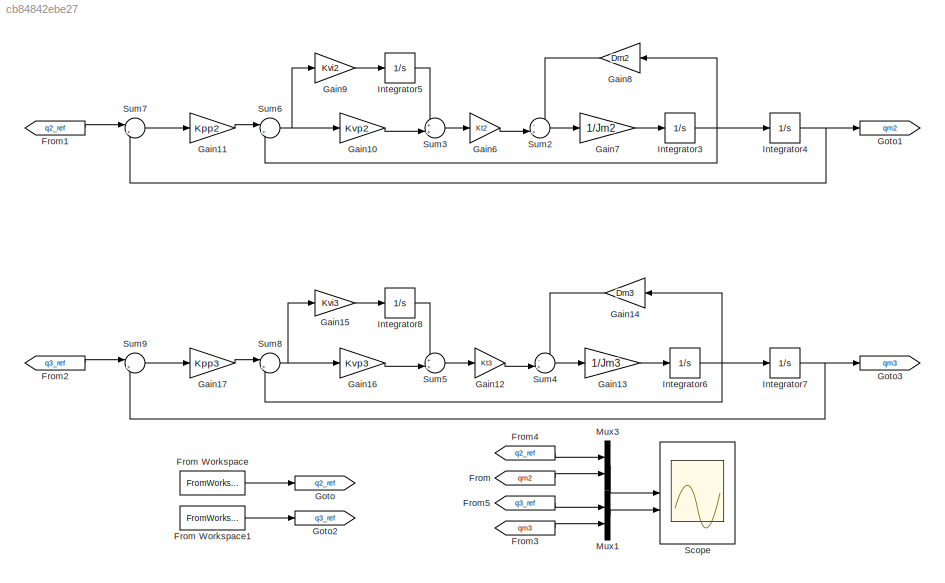
MODEL slx_cb84842ebe27
KIND model
CONFIG AbsTol = auto
CONFIG EnableMultiTasking = off
CONFIG FixedStep = Ts
CONFIG MaxStep = auto
CONFIG MinStep = auto
CONFIG RelTol = 1e-3
CONFIG SampleTimeConstraint = Unconstrained
CONFIG SolverName = ode8
CONFIG StartTime = 0.0
CONFIG StopTime = 10.0
BLOCK [From] From
  GotoTag = qm2
BLOCK [FromWorkspace] From Workspace
  VariableName = pos_ref2_tt
BLOCK [FromWorkspace] From Workspace1
  VariableName = pos_ref3_tt
BLOCK [From] From1
  GotoTag = q2_ref
BLOCK [From] From2
  GotoTag = q3_ref
BLOCK [From] From3
  GotoTag = qm3
BLOCK [From] From4
  GotoTag = q2_ref
BLOCK [From] From5
  GotoTag = q3_ref
BLOCK [Gain] Gain10
  Gain = Kvp2
BLOCK [Gain] Gain11
  Gain = Kpp2
BLOCK [Gain] Gain12
  Gain = Kt3
BLOCK [Gain] Gain13
  Gain = 1/Jm3
BLOCK [Gain] Gain14
  Gain = Dm3
  NameLocation = top
BLOCK [Gain] Gain15
  Gain = Kvi3
BLOCK [Gain] Gain16
  Gain = Kvp3
BLOCK [Gain] Gain17
  Gain = Kpp3
BLOCK [Gain] Gain6
  Gain = Kt2
BLOCK [Gain] Gain7
  Gain = 1/Jm2
BLOCK [Gain] Gain8
  Gain = Dm2
  NameLocation = top
BLOCK [Gain] Gain9
  Gain = Kvi2
BLOCK [Goto] Goto
  GotoTag = q2_ref
BLOCK [Goto] Goto1
  GotoTag = qm2
BLOCK [Goto] Goto2
  GotoTag = q3_ref
BLOCK [Goto] Goto3
  GotoTag = qm3
BLOCK [Integrator] Integrator3
BLOCK [Integrator] Integrator4
BLOCK [Integrator] Integrator5
BLOCK [Integrator] Integrator6
BLOCK [Integrator] Integrator7
BLOCK [Integrator] Integrator8
BLOCK [Mux] Mux1
  DisplayOption = bar
  Inputs = 2
BLOCK [Mux] Mux3
  DisplayOption = bar
  Inputs = 2
BLOCK [Scope] Scope
  Floating = off
  NumInputPorts = 2
  ScopeSpecificationString = Simulink.scopes.TimeScopeBlockCfg('CurrentConfiguration', extmgr.ConfigurationSet(extmgr.Configuration('Core','General UI',true),extmgr.Configuration('Core','Source UI',true),extmgr.Configuration('Sources','WiredSimulink',true),extmgr.Configuration('Visuals','Time Domain',true,'SerializedDisplays',{struct('MinYLimReal','-0.80172','MaxYLimReal','0.10431','YLabelReal','','MinYLimMag','0.00000','MaxY...<+1496ch>
BLOCK [Sum] Sum2
  Inputs = -+|
BLOCK [Sum] Sum3
  Inputs = ++|
BLOCK [Sum] Sum4
  Inputs = -+|
BLOCK [Sum] Sum5
  Inputs = ++|
BLOCK [Sum] Sum6
  Inputs = |+-
BLOCK [Sum] Sum7
  Inputs = |+-
BLOCK [Sum] Sum8
  Inputs = |+-
BLOCK [Sum] Sum9
  Inputs = |+-
LINE From Workspace1:1 -> Goto2:1
LINE From Workspace:1 -> Goto:1
LINE From1:1 -> Sum7:1
LINE From2:1 -> Sum9:1
LINE From3:1 -> Mux1:2
LINE From4:1 -> Mux3:1
LINE From5:1 -> Mux1:1
LINE From:1 -> Mux3:2
LINE Gain10:1 -> Sum3:2
LINE Gain11:1 -> Sum6:1
LINE Gain12:1 -> Sum4:2
LINE Gain13:1 -> Integrator6:1
LINE Gain14:1 -> Sum4:1
LINE Gain15:1 -> Integrator8:1
LINE Gain16:1 -> Sum5:2
LINE Gain17:1 -> Sum8:1
LINE Gain6:1 -> Sum2:2
LINE Gain7:1 -> Integrator3:1
LINE Gain8:1 -> Sum2:1
LINE Gain9:1 -> Integrator5:1
NET Integrator3:1 -> Gain8:1, Integrator4:1, Sum6:2
NET Integrator4:1 -> Goto1:1, Sum7:2
LINE Integrator5:1 -> Sum3:1
NET Integrator6:1 -> Gain14:1, Integrator7:1, Sum8:2
NET Integrator7:1 -> Goto3:1, Sum9:2
LINE Integrator8:1 -> Sum5:1
LINE Mux1:1 -> Scope:2
LINE Mux3:1 -> Scope:1
LINE Sum2:1 -> Gain7:1
LINE Sum3:1 -> Gain6:1
LINE Sum4:1 -> Gain13:1
LINE Sum5:1 -> Gain12:1
NET Sum6:1 -> Gain10:1, Gain9:1
LINE Sum7:1 -> Gain11:1
NET Sum8:1 -> Gain15:1, Gain16:1
LINE Sum9:1 -> Gain17:1
note: NET lines group one-source signal fan-out (src -> all destinations, sorted); 1:1 wires keep LINE
